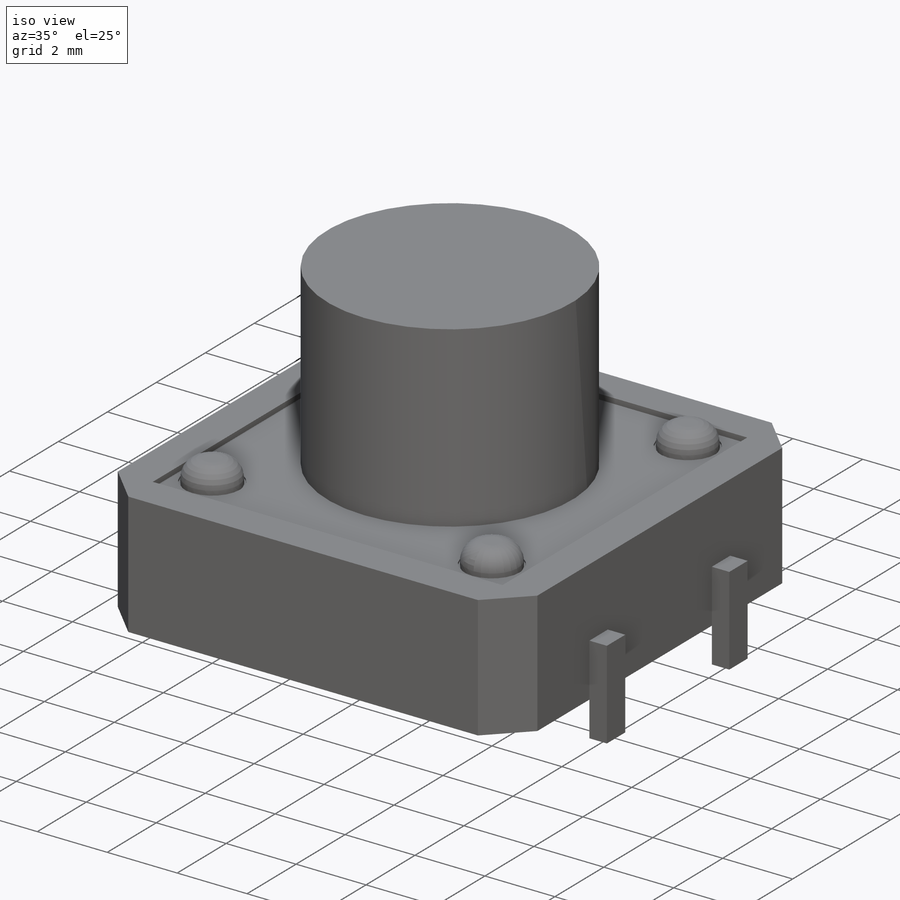
[diagram: iso view]
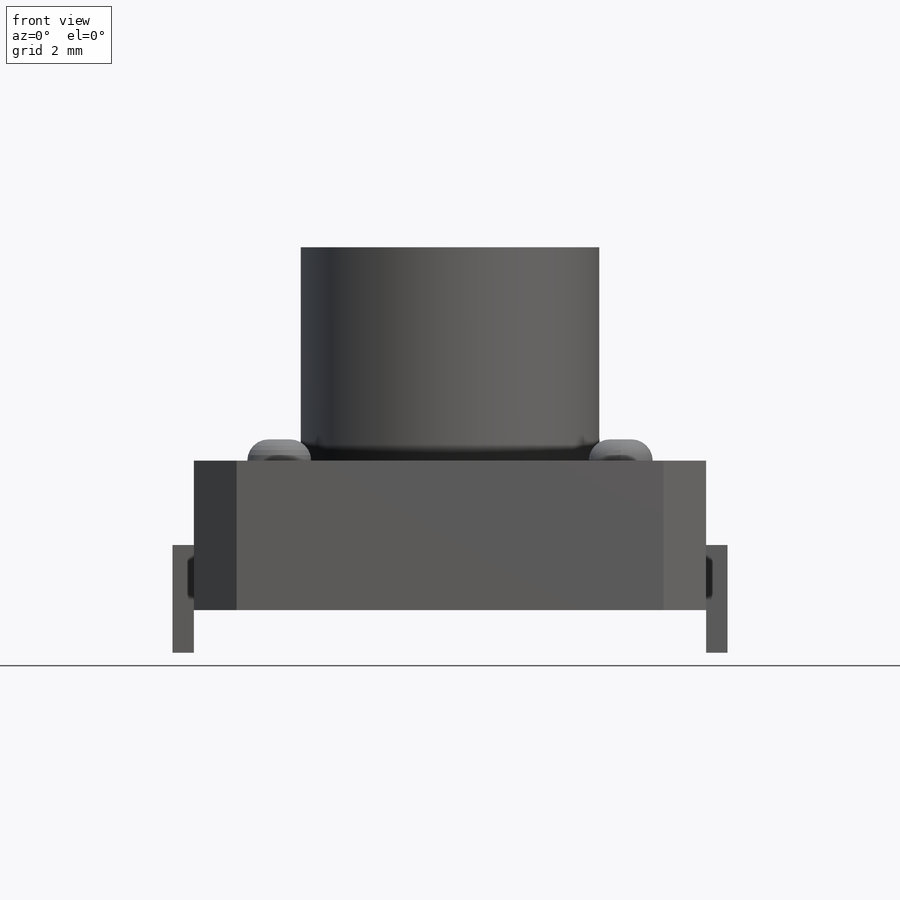
[diagram: front view]
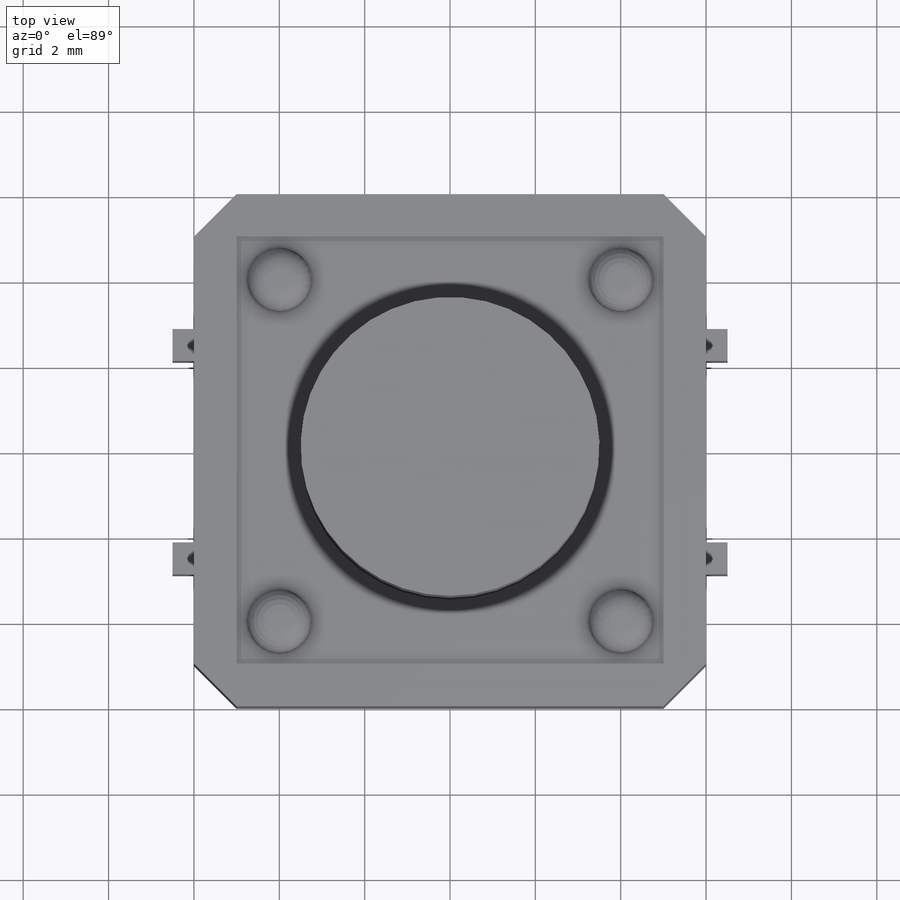
[diagram: top view]
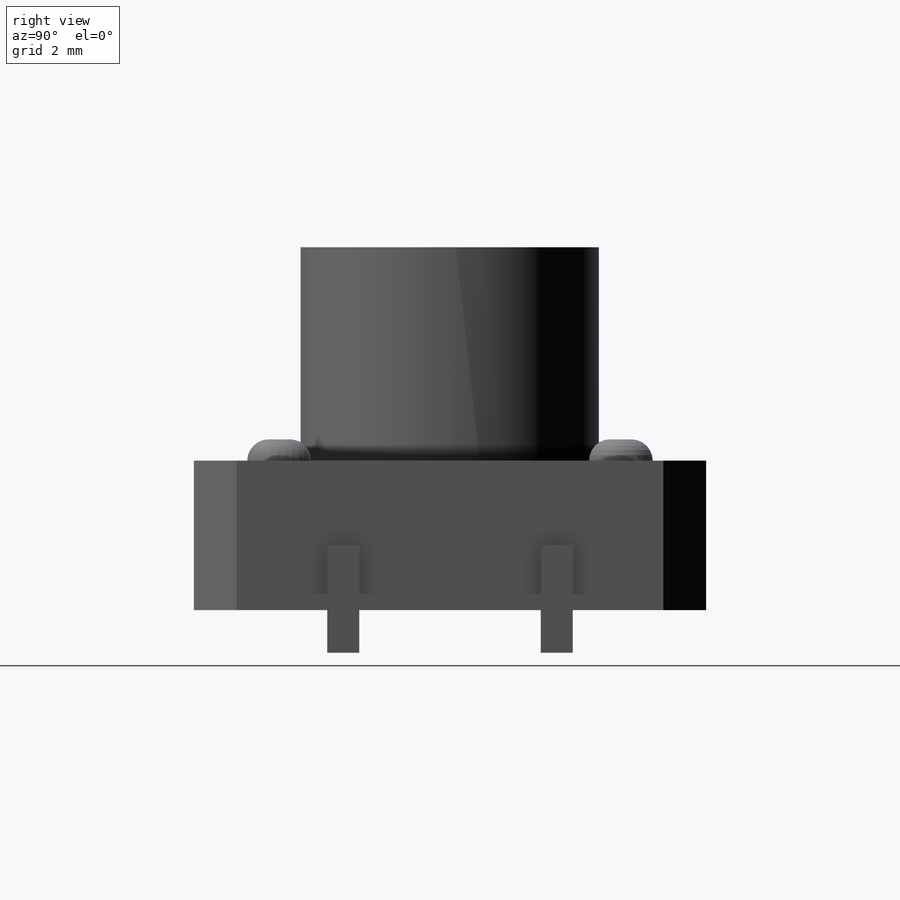
[diagram: right view]
SOLIDWORKS PART (.sldprt)
format: sldprt  version: not decoded by parser v0  size: 356,864 bytes
history: native  units: mm
features: sketch x16, sheet_metal_op x5, extrude x4, plane x3, mirror x2, material x1, cut_extrude x1, chamfer x1, fillet x1 + 4 further entries (+13 scaffold rows collapsed; 4 parser-record rows omitted)
feature tree (55):
  scaffold x13  (default folders/planes/origin — collapsed)
  material  "Material <not specified>"
  sketch  "Sketch1"  dims[D1=12.0mm D2=12.0mm]
  extrude  "Boss-Extrude1"  Depth=3.5mm
  sketch  "Sketch15"  dims[D1=1.0mm]
  cut_extrude  "Cut-Extrude1"  Depth=0.15mm
  sketch  "Sketch2"  dims[D1=7.0mm]
  extrude  "Boss-Extrude2"  Depth=5mm
  chamfer  "Chamfer1"  Distance=1mm Angle=45deg
  plane  "Plane1"
  plane  "Plane2"  Offset=2.5mm
  plane  "Plane3"
  sketch  "Sketch4"  dims[c1.D1=1.0mm c2.D1=0.05mm c2.D2=0.5 c2.D3=0.0deg c2.D6=~28.64789deg]
  sheet_metal_op  "Base-Flange1"
  mirror  "Mirror1"
  mirror  "Mirror2"
  sketch  "Sketch16"  dims[D2=1.5mm D1=1.0mm D3=1.0mm]
  extrude  "Boss-Extrude3"  Depth=0.65mm
  fillet  "Fillet1"  Radius=0.5mm
  sketch  "Sketch17"  dims[D1=0.1mm D2=0.05mm D3=0.05mm D4=0.05mm D5=0.05mm]
  extrude  "Boss-Extrude4"  Depth=0.05mm
  sketch  "Bend-Lines1"
  sketch  "Bounding-Box1"
  sheet_metal_op  "Sheet-Metal3"
  "Flat-Pattern3"
  sketch  "Bend-Lines2"
  sketch  "Bounding-Box2"
  parser-record x4  (decoder bookkeeping rows leaked as tree rows — omitted from the tree; the rows remain in map.json)
  sheet_metal_op  "Sheet-Metal4"
  "Flat-Pattern4"
  sketch  "Bend-Lines3"
  sketch  "Bounding-Box3"
  sheet_metal_op  "Sheet-Metal5"
  "Flat-Pattern5"
  sketch  "Bend-Lines4"
  sketch  "Bounding-Box4"
  sheet_metal_op  "Sheet-Metal6"
  "Flat-Pattern6"
  sketch  "Bend-Lines5"
  sketch  "Bounding-Box5"
decode coverage: 13 of 30 modeling features carry decoded parameters; 4 rows unclassified (native names shown)
note: ~ marks probable driven/reference dimensions
note: suppression state not decoded; provenance and decode notes live in map.json
